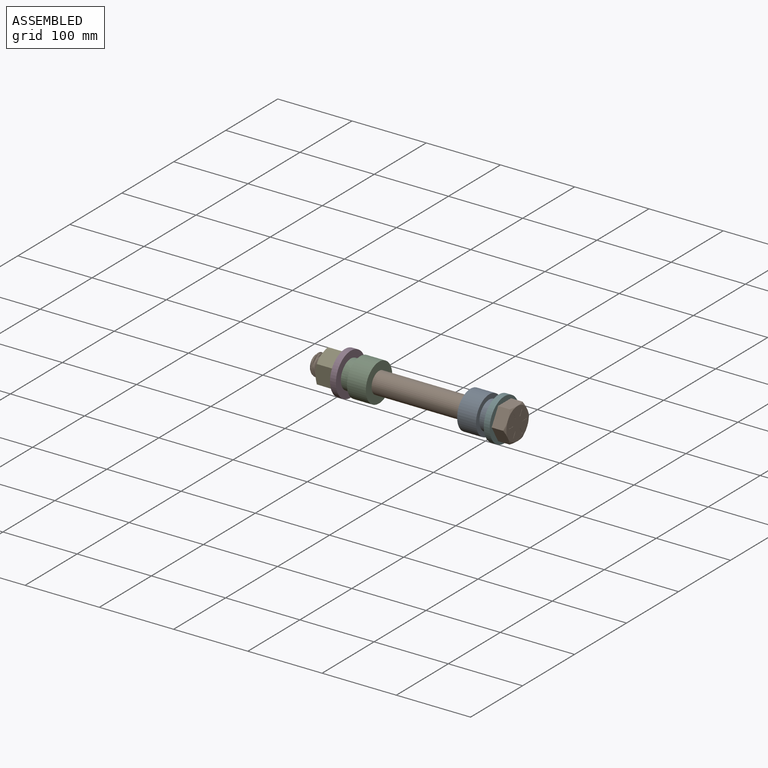
[diagram: assembled view]
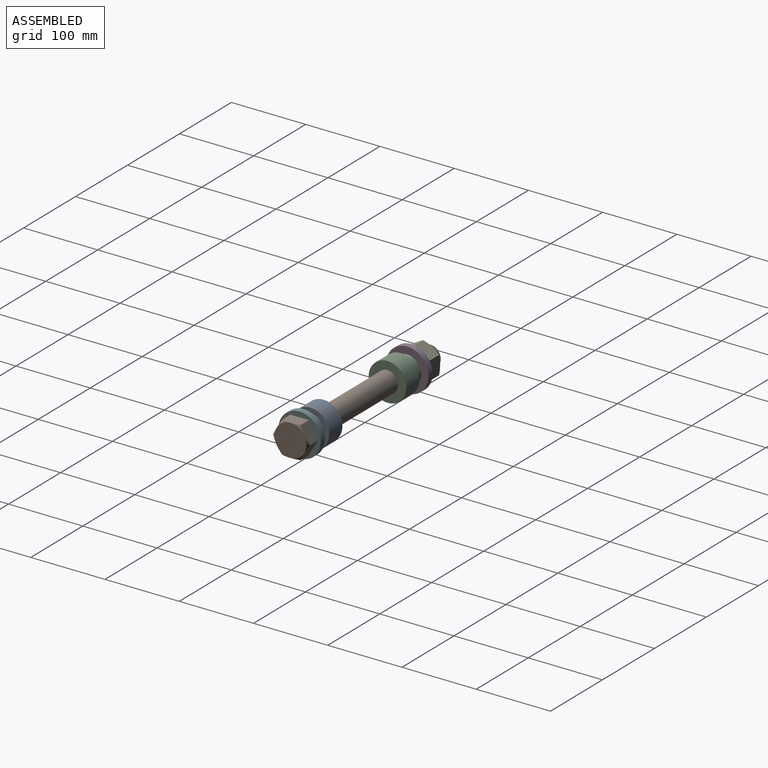
[diagram: assembled view, second angle]
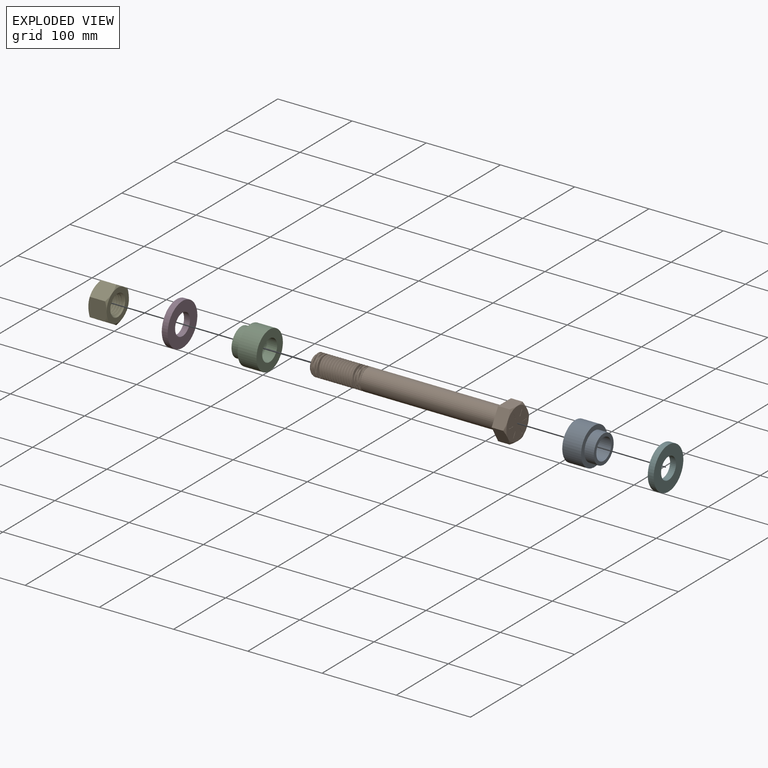
[diagram: exploded view]
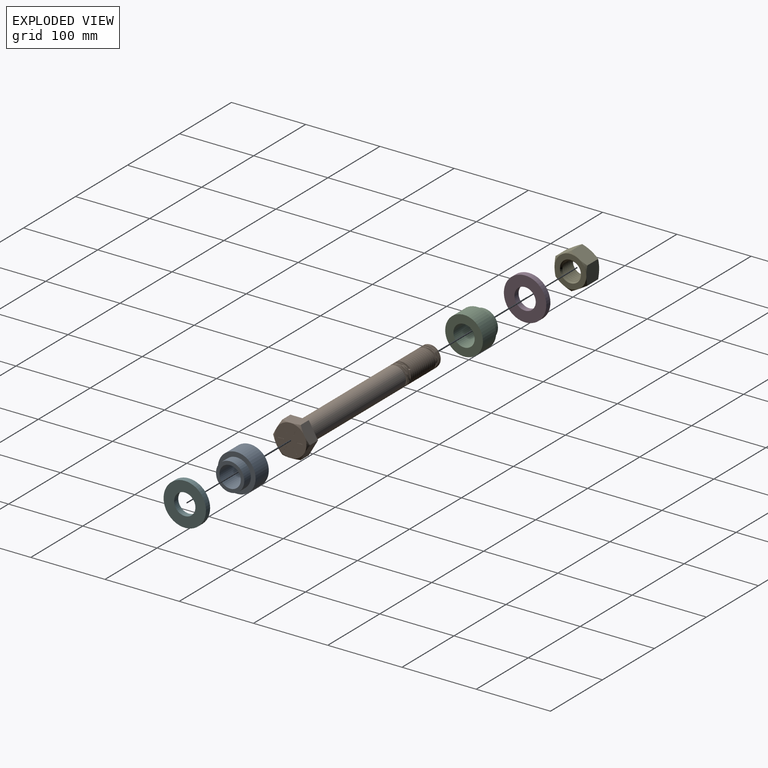
[diagram: exploded view, second angle]
ASSEMBLY  parts=6 mates=5
PART A: 6 faces, bbox 38.1x50.8x50.8 mm
  f0: plane 38.07x38.07mm, normal (-1,0,0), area 491.6mm2, adj f1,f5
  f1: cylinder r=14.35mm len=38.1mm, axis (-1,0,0), area 3435.5mm2, adj f0,f2
  f2: plane 50.8x50.8mm, normal (1,0,0), area 1379.8mm2, adj f1,f3
  f3: cylinder r=25.4mm len=50.8mm, axis (-1,0,0), area 4053.7mm2, adj f2,f4
  f4: plane 50.8x50.8mm, normal (-1,0,0), area 888.3mm2, adj f3,f5
  f5: cylinder r=19.04mm len=38.07mm, axis (-1,0,0), area 1519.1mm2, adj f0,f4
PART B: 70 faces, bbox 274.5x51.5x51.5 mm
  f0: cylinder r=0.64mm len=1.2mm, axis (-1,0,0), area 0.5mm2, adj f43,f67,f68,f69
  f1: cylinder r=0.64mm len=1.2mm, axis (-1,0,0), area 0.5mm2, adj f43,f63,f64,f65
  f2: cylinder r=0.64mm len=1.2mm, axis (-1,0,0), area 0.5mm2, adj f43,f53,f55,f56
  f3: cylinder r=0.64mm len=1.2mm, axis (-1,0,0), area 0.5mm2, adj f43,f49,f51,f52
  f4: cone r=1000mm half-angle=45deg, axis (-1,0,0), area 140.3mm2, adj f25,f32,f33,f34
  f5: cone r=11.57mm half-angle=45deg, axis (-1,0,0), area 172.1mm2, adj f7,f32,f33,f34,f35
  f6: cylinder r=14.29mm len=28.58mm, axis (1,0,0), area 40.7mm2, adj f7,f8,f33,f34
  f7: cylinder r=14.29mm len=10.19mm, axis (1,0,0), area 2.6mm2, adj f5,f6,f34
  f8: cylinder r=14.29mm len=28.58mm, axis (1,0,0), area 40.7mm2, adj f6,f9,f33,f34
  f9: cylinder r=14.29mm len=28.58mm, axis (1,0,0), area 40.7mm2, adj f8,f10,f33,f34
  f10: cylinder r=14.29mm len=28.58mm, axis (1,0,0), area 40.7mm2, adj f9,f11,f33,f34
  f11: cylinder r=14.29mm len=28.58mm, axis (1,0,0), area 40.7mm2, adj f10,f12,f33,f34
  f12: cylinder r=14.29mm len=28.58mm, axis (1,0,0), area 40.7mm2, adj f11,f13,f33,f34
  f13: cylinder r=14.29mm len=28.58mm, axis (1,0,0), area 40.7mm2, adj f12,f14,f33,f34
  f14: cylinder r=14.29mm len=28.58mm, axis (1,0,0), area 40.7mm2, adj f13,f15,f33,f34
  f15: cylinder r=14.29mm len=28.58mm, axis (1,0,0), area 40.7mm2, adj f14,f16,f33,f34
  f16: cylinder r=14.29mm len=28.58mm, axis (1,0,0), area 40.7mm2, adj f15,f17,f33,f34
  f17: cylinder r=14.29mm len=28.58mm, axis (1,0,0), area 40.7mm2, adj f16,f18,f33,f34
  f18: cylinder r=14.29mm len=28.58mm, axis (1,0,0), area 40.7mm2, adj f17,f19,f33,f34
  f19: cylinder r=14.29mm len=28.58mm, axis (1,0,0), area 40.7mm2, adj f18,f20,f33,f34
  f20: cylinder r=14.29mm len=28.58mm, axis (1,0,0), area 40.7mm2, adj f19,f21,f33,f34
  f21: cylinder r=14.29mm len=28.58mm, axis (1,0,0), area 40.7mm2, adj f20,f22,f33,f34
  f22: cylinder r=14.29mm len=28.58mm, axis (1,0,0), area 40.7mm2, adj f21,f23,f33,f34
  f23: cylinder r=14.29mm len=28.58mm, axis (1,0,0), area 40.7mm2, adj f22,f24,f33,f34
  f24: cylinder r=14.29mm len=28.58mm, axis (1,0,0), area 40.7mm2, adj f23,f25,f33,f34
  f25: cylinder r=14.29mm len=185.96mm, axis (1,0,0), area 16549.2mm2, adj f4,f24,f33,f34,f36
  f26: plane 26.79x19.5mm, normal (0,0,1), area 415.9mm2, adj f27,f31,f36,f37,f42
  f27: plane 23.46x19.49mm, normal (0,0.87,0.5), area 415.9mm2, adj f26,f28,f36,f41,f42
  f28: plane 23.46x19.49mm, normal (0,0.87,-0.5), area 415.9mm2, adj f27,f29,f36,f40,f41
  f29: plane 26.79x19.5mm, normal (0,0,-1), area 415.9mm2, adj f28,f30,f36,f39,f40
  f30: plane 23.46x19.49mm, normal (0,-0.87,-0.5), area 415.9mm2, adj f29,f31,f36,f38,f39
  f31: plane 23.46x19.49mm, normal (0,-0.87,0.5), area 415.9mm2, adj f26,f30,f36,f37,f38
  f32: bspline ~68.04x23.85mm, area 629.6mm2, adj f4,f5,f33,f34
  f33: bspline ~69.49x28.57mm, area 4148.9mm2, adj f4,f5,f6,f8,f9,f10,f11,f12
  f34: bspline ~72.21x28.35mm, area 4149.7mm2, adj f4,f5,f6,f7,f8,f9,f10,f11
  f35: plane 23.13x23.13mm, normal (1,0,0), area 420.3mm2, adj f5
  f36: plane 49.49x42.86mm, normal (1,0,0), area 949.8mm2, adj f25,f26,f27,f28,f29,f30,f31
  f37: cone r=21.43mm half-angle=60deg, axis (1,0,0), area 45.2mm2, adj f26,f31,f43
  f38: cone r=21.43mm half-angle=60deg, axis (1,0,0), area 45.2mm2, adj f30,f31,f43
  f39: cone r=21.43mm half-angle=60deg, axis (1,0,0), area 45.2mm2, adj f29,f30,f43
  f40: cone r=21.43mm half-angle=60deg, axis (1,0,0), area 45.2mm2, adj f28,f29,f43
  f41: cone r=21.43mm half-angle=60deg, axis (1,0,0), area 45.2mm2, adj f27,f28,f43
  f42: cone r=21.43mm half-angle=60deg, axis (1,0,0), area 45.2mm2, adj f26,f27,f43
  f43: plane 42.86x42.86mm, normal (-1,0,0), area 1378.9mm2, adj f0,f1,f2,f3,f37,f38,f39,f40
  f44: cylinder r=0.64mm len=1.29mm, axis (-1,0,0), area 0.5mm2, adj f43,f45,f47,f48
  f45: plane 7.29x0.25mm, normal (0,0,-1), area 1.9mm2, adj f43,f44,f46,f48
  f46: cylinder r=0.64mm len=1.29mm, axis (-1,0,0), area 0.5mm2, adj f43,f45,f47,f48
  f47: plane 7.29x0.25mm, normal (0,0,1), area 1.9mm2, adj f43,f44,f46,f48
  f48: plane 8.57x1.29mm, normal (-1,0,0), area 10.7mm2, adj f44,f45,f46,f47
  f49: plane 6.31x3.64mm, normal (0,0.87,-0.5), area 1.9mm2, adj f3,f43,f50,f52
  f50: cylinder r=0.64mm len=1.2mm, axis (-1,0,0), area 0.5mm2, adj f43,f49,f51,f52
  f51: plane 6.31x3.64mm, normal (0,-0.87,0.5), area 1.9mm2, adj f3,f43,f50,f52
  f52: plane 7.6x4.93mm, normal (-1,0,0), area 10.7mm2, adj f3,f49,f50,f51
  f53: plane 6.31x3.64mm, normal (0,0.87,0.5), area 1.9mm2, adj f2,f43,f54,f56
  f54: cylinder r=0.64mm len=1.2mm, axis (-1,0,0), area 0.5mm2, adj f43,f53,f55,f56
  f55: plane 6.31x3.64mm, normal (0,-0.87,-0.5), area 1.9mm2, adj f2,f43,f54,f56
  f56: plane 7.6x4.93mm, normal (-1,0,0), area 10.7mm2, adj f2,f53,f54,f55
  f57: cylinder r=0.64mm len=1.29mm, axis (-1,0,0), area 0.5mm2, adj f43,f58,f60,f61
  f58: plane 7.29x0.25mm, normal (0,0,1), area 1.9mm2, adj f43,f57,f59,f61
  f59: cylinder r=0.64mm len=1.29mm, axis (-1,0,0), area 0.5mm2, adj f43,f58,f60,f61
  f60: plane 7.29x0.25mm, normal (0,0,-1), area 1.9mm2, adj f43,f57,f59,f61
  f61: plane 8.57x1.29mm, normal (-1,0,0), area 10.7mm2, adj f57,f58,f59,f60
  f62: cylinder r=0.64mm len=1.2mm, axis (-1,0,0), area 0.5mm2, adj f43,f63,f64,f65
  f63: plane 6.31x3.64mm, normal (0,-0.87,0.5), area 1.9mm2, adj f1,f43,f62,f65
  f64: plane 6.31x3.64mm, normal (0,0.87,-0.5), area 1.9mm2, adj f1,f43,f62,f65
  f65: plane 7.6x4.93mm, normal (-1,0,0), area 10.7mm2, adj f1,f62,f63,f64
  f66: cylinder r=0.64mm len=1.2mm, axis (-1,0,0), area 0.5mm2, adj f43,f67,f68,f69
  f67: plane 6.31x3.64mm, normal (0,-0.87,-0.5), area 1.9mm2, adj f0,f43,f66,f69
  f68: plane 6.31x3.64mm, normal (0,0.87,0.5), area 1.9mm2, adj f0,f43,f66,f69
  f69: plane 7.6x4.93mm, normal (-1,0,0), area 10.7mm2, adj f0,f66,f67,f68
PART C: same geometry as A
PART D: 4 faces, bbox 7.9x57.2x57.2 mm
  f0: cylinder r=14.35mm len=28.7mm, axis (-1,0,0), area 715.7mm2, adj f2,f3
  f1: cylinder r=28.57mm len=57.15mm, axis (-1,0,0), area 1425.1mm2, adj f2,f3
  f2: plane 57.15x57.15mm, normal (1,0,0), area 1918.2mm2, adj f0,f1
  f3: plane 57.15x57.15mm, normal (-1,0,0), area 1918.2mm2, adj f0,f1
PART E: 26 faces, bbox 51.5x51.5x29.4 mm
  f0: cone r=13.38mm half-angle=45deg, axis (0,0,-1), area 140.3mm2, adj f10,f11,f12,f13
  f1: cone r=13.38mm half-angle=45deg, axis (0,0,1), area 140.3mm2, adj f3,f11,f12,f13
  f2: cylinder r=14.29mm len=28.58mm, axis (0,0,-1), area 276.1mm2, adj f3,f10,f11,f13
  f3: plane 42.86x42.86mm, normal (0,0,1), area 801.6mm2, adj f1,f2,f14,f15,f16,f17,f18,f19
  f4: plane 26.64x23.46mm, normal (-0.5,0.87,0), area 576.4mm2, adj f5,f9,f14,f19,f21,f22
  f5: plane 26.79x26.65mm, normal (-1,0,0), area 576.4mm2, adj f4,f6,f18,f19,f22,f23
  f6: plane 26.64x23.46mm, normal (-0.5,-0.87,0), area 576.4mm2, adj f5,f7,f17,f18,f23,f24
  f7: plane 26.64x23.46mm, normal (0.5,-0.87,0), area 576.4mm2, adj f6,f8,f16,f17,f24,f25
  f8: plane 26.79x26.65mm, normal (1,0,0), area 576.4mm2, adj f7,f9,f15,f16,f20,f25
  f9: plane 26.64x23.46mm, normal (0.5,0.87,0), area 576.4mm2, adj f4,f8,f14,f15,f20,f21
  f10: plane 42.86x42.86mm, normal (0,0,-1), area 801.6mm2, adj f0,f2,f20,f21,f22,f23,f24,f25
  f11: bspline ~28.58x28.58mm, area 1379.8mm2, adj f0,f1,f2,f12
  f12: bspline ~23.86x23.86mm, area 186.5mm2, adj f0,f1,f11,f13
  f13: bspline ~28.57x28.52mm, area 1380mm2, adj f0,f1,f2,f12
  f14: cone r=21.43mm half-angle=60deg, axis (0,0,-1), area 45.2mm2, adj f3,f4,f9
  f15: cone r=21.43mm half-angle=60deg, axis (0,0,-1), area 45.2mm2, adj f3,f8,f9
  f16: cone r=21.43mm half-angle=60deg, axis (0,0,-1), area 45.2mm2, adj f3,f7,f8
  f17: cone r=21.43mm half-angle=60deg, axis (0,0,-1), area 45.2mm2, adj f3,f6,f7
  f18: cone r=21.43mm half-angle=60deg, axis (0,0,-1), area 45.2mm2, adj f3,f5,f6
  f19: cone r=21.43mm half-angle=60deg, axis (0,0,-1), area 45.2mm2, adj f3,f4,f5
  f20: cone r=21.43mm half-angle=60deg, axis (0,0,1), area 45.2mm2, adj f8,f9,f10
  f21: cone r=21.43mm half-angle=60deg, axis (0,0,1), area 45.2mm2, adj f4,f9,f10
  f22: cone r=21.43mm half-angle=60deg, axis (0,0,1), area 45.2mm2, adj f4,f5,f10
  f23: cone r=21.43mm half-angle=60deg, axis (0,0,1), area 45.2mm2, adj f5,f6,f10
  f24: cone r=21.43mm half-angle=60deg, axis (0,0,1), area 45.2mm2, adj f6,f7,f10
  f25: cone r=21.43mm half-angle=60deg, axis (0,0,1), area 45.2mm2, adj f7,f8,f10
PART F: same geometry as D
PLACE A rot(axis=(0,0.71,0.71),180deg) t=(98.65,0,0)mm
PLACE B rot(axis=(0,0,1),180deg) t=(7.37,0,0)mm fixed
PLACE C rot(axis=(1,0,0),90deg) t=(-62.46,0,0)mm
PLACE D rot(axis=(1,0,0),90deg) t=(-85.48,0,0)mm
PLACE E rot(axis=(-0.58,0.58,-0.58),120deg) t=(-101.75,0,0)mm
PLACE F rot(axis=(1,0,0),90deg) t=(121.67,0,0)mm
MATE fastened D.f0 <-> C.f1  axis (1,0,0) through (-81.51,0,0)mm
MATE fastened F.f0 <-> B.f5  axis (1,0,0) through (125.64,0,0)mm
MATE slider C.f1 <-> B.f5  axis (1,0,0) through (-43.41,0,0)mm
MATE fastened F.f0 <-> A.f1  axis (-1,0,0) through (117.7,0,0)mm
MATE fastened E.f2 <-> D.f0  axis (1,0,0) through (-89.45,0,0)mm
